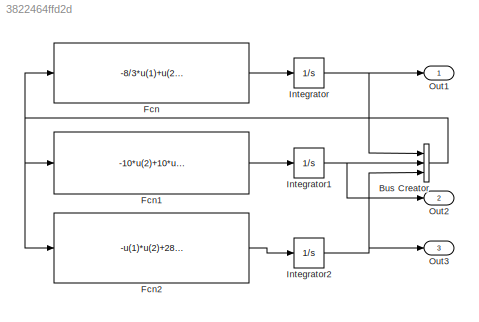
MODEL slx_3822464ffd2d
KIND model
CONFIG AbsTol = auto
CONFIG EnableMultiTasking = off
CONFIG FixedStep = 0.01
CONFIG MaxStep = auto
CONFIG MinStep = auto
CONFIG RelTol = 1e-3
CONFIG SampleTimeConstraint = Unconstrained
CONFIG Solver = FixedStepAuto
CONFIG SolverName = FixedStepAuto
CONFIG StartTime = 0.0
CONFIG StopTime = 60
BLOCK [BusCreator] Bus Creator
  DisplayOption = bar
  InheritFromInputs = on
  Inputs = 3
  Ports = [3, 1]
BLOCK [Fcn] Fcn
  Expr = -8/3*u(1)+u(2)*u(3)
BLOCK [Fcn] Fcn1
  Expr = -10*u(2)+10*u(3)
BLOCK [Fcn] Fcn2
  Expr = -u(1)*u(2)+28*u(2)-u(3)
BLOCK [Integrator] Integrator
  Ports = [1, 1]
BLOCK [Integrator] Integrator1
  Ports = [1, 1]
BLOCK [Integrator] Integrator2
  InitialCondition = 0.001
  Ports = [1, 1]
BLOCK [Outport] Out1
  IconDisplay = Signal name
BLOCK [Outport] Out2
  IconDisplay = Signal name
  Port = 2
BLOCK [Outport] Out3
  IconDisplay = Signal name
  Port = 3
NET Bus Creator:1 -> Fcn1:1, Fcn2:1, Fcn:1
LINE Fcn1:1 -> Integrator1:1
LINE Fcn2:1 -> Integrator2:1
LINE Fcn:1 -> Integrator:1
NET Integrator1:1 -> Bus Creator:2, Out2:1
NET Integrator2:1 -> Bus Creator:3, Out3:1
NET Integrator:1 -> Bus Creator:1, Out1:1
note: NET lines group one-source signal fan-out (src -> all destinations, sorted); 1:1 wires keep LINE
